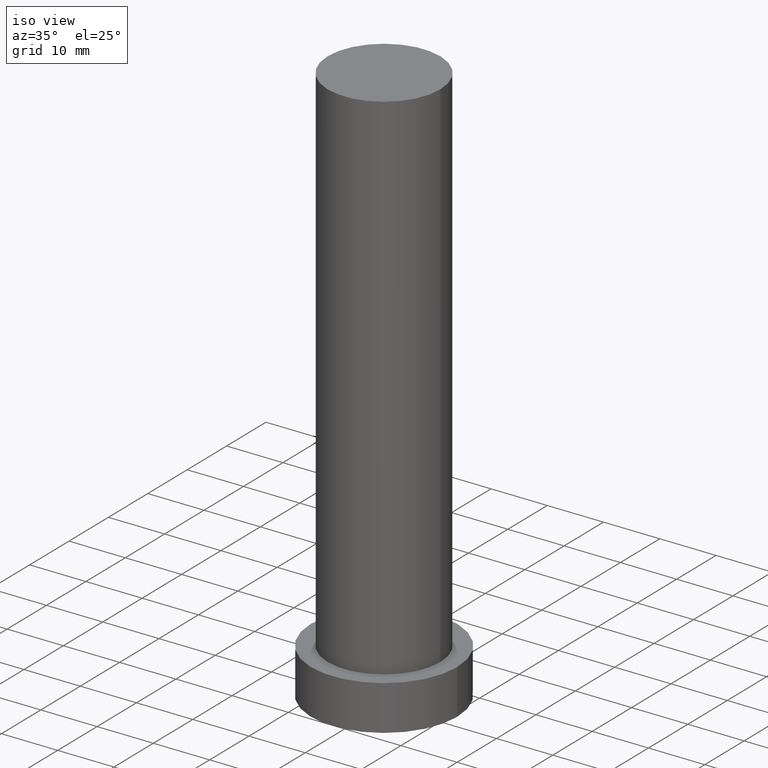
[diagram: clean part render]
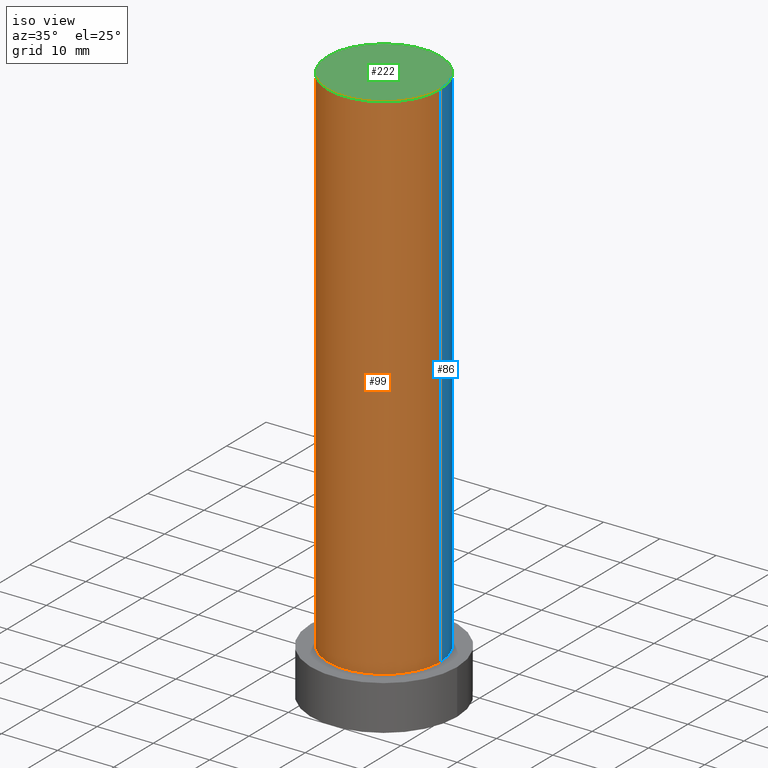
[diagram: same view with three faces highlighted in distinct colors, each labeled with its STEP entity id]
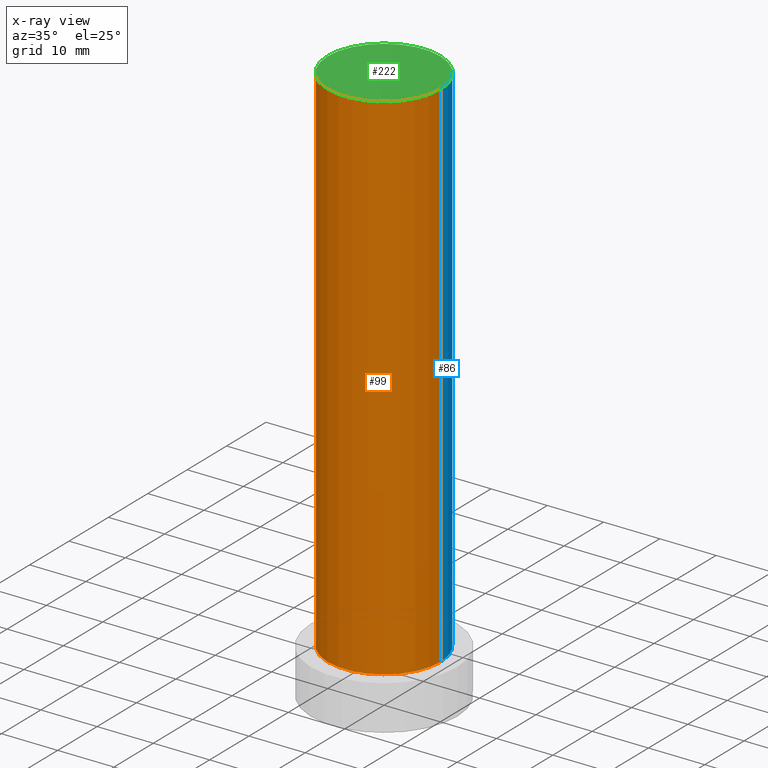
[diagram: x-ray of the same camera — body ghosted, the three highlighted faces saturated]
A machine part, iso view with three faces highlighted in distinct colors.
The next image is the same camera in x-ray (body ghosted, the three faces saturated) — at least one of them is partly hidden behind the body in this view.
Their STEP definitions:

[orange] entity #99 — the highlighted cylindrical surface (partial cylindrical patch) has radius 10 mm, axis along (-0, -0, -1).
#7 = VERTEX_POINT ( 'NONE', #120 ) ;
#21 = CIRCLE ( 'NONE', #123, 10.00000000000000000 ) ;
#29 = CARTESIAN_POINT ( 'NONE',  ( 10.00000000000000000, 1.224646799147353256E-15, 8.000000000000000000 ) ) ;
#39 = EDGE_CURVE ( 'NONE', #77, #228, #21, .T. ) ;
#48 = VERTEX_POINT ( 'NONE', #253 ) ;
#53 = CARTESIAN_POINT ( 'NONE',  ( 0.000000000000000000, 0.000000000000000000, 100.0000000000000000 ) ) ;
#75 = FACE_OUTER_BOUND ( 'NONE', #88, .T. ) ;
#77 = VERTEX_POINT ( 'NONE', #251 ) ;
#88 = EDGE_LOOP ( 'NONE', ( #173, #139, #211, #157 ) ) ;
#90 = CIRCLE ( 'NONE', #203, 10.00000000000000000 ) ;
#91 = CARTESIAN_POINT ( 'NONE',  ( 0.000000000000000000, 0.000000000000000000, 100.0000000000000000 ) ) ;
#93 = DIRECTION ( 'NONE',  ( 0.000000000000000000, 0.000000000000000000, 1.000000000000000000 ) ) ;
#95 = DIRECTION ( 'NONE',  ( 1.000000000000000000, 0.000000000000000000, 0.000000000000000000 ) ) ;
#96 = AXIS2_PLACEMENT_3D ( 'NONE', #53, #114, #112 ) ;
#99 = ADVANCED_FACE ( 'NONE', ( #75 ), #156, .T. ) ;
#112 = DIRECTION ( 'NONE',  ( -1.000000000000000000, 0.000000000000000000, 0.000000000000000000 ) ) ;
#114 = DIRECTION ( 'NONE',  ( -0.000000000000000000, -0.000000000000000000, -1.000000000000000000 ) ) ;
#116 = CARTESIAN_POINT ( 'NONE',  ( 0.000000000000000000, 0.000000000000000000, 8.000000000000000000 ) ) ;
#120 = CARTESIAN_POINT ( 'NONE',  ( 10.00000000000000000, 1.224646799147353256E-15, 100.0000000000000000 ) ) ;
#122 = EDGE_CURVE ( 'NONE', #48, #77, #224, .T. ) ;
#123 = AXIS2_PLACEMENT_3D ( 'NONE', #116, #93, #95 ) ;
#139 = ORIENTED_EDGE ( 'NONE', *, *, #245, .F. ) ;
#155 = DIRECTION ( 'NONE',  ( 0.000000000000000000, 0.000000000000000000, 1.000000000000000000 ) ) ;
#156 = CYLINDRICAL_SURFACE ( 'NONE', #96, 10.00000000000000000 ) ;
#157 = ORIENTED_EDGE ( 'NONE', *, *, #39, .T. ) ;
#160 = VECTOR ( 'NONE', #202, 1000.000000000000000 ) ;
#163 = EDGE_CURVE ( 'NONE', #7, #228, #208, .T. ) ;
#169 = DIRECTION ( 'NONE',  ( -0.000000000000000000, -0.000000000000000000, -1.000000000000000000 ) ) ;
#173 = ORIENTED_EDGE ( 'NONE', *, *, #163, .F. ) ;
#202 = DIRECTION ( 'NONE',  ( -0.000000000000000000, -0.000000000000000000, -1.000000000000000000 ) ) ;
#203 = AXIS2_PLACEMENT_3D ( 'NONE', #91, #155, #225 ) ;
#205 = VECTOR ( 'NONE', #169, 1000.000000000000000 ) ;
#208 = LINE ( 'NONE', #247, #160 ) ;
#211 = ORIENTED_EDGE ( 'NONE', *, *, #122, .T. ) ;
#223 = CARTESIAN_POINT ( 'NONE',  ( -10.00000000000000000, 0.000000000000000000, 100.0000000000000000 ) ) ;
#224 = LINE ( 'NONE', #223, #205 ) ;
#225 = DIRECTION ( 'NONE',  ( 1.000000000000000000, 0.000000000000000000, 0.000000000000000000 ) ) ;
#228 = VERTEX_POINT ( 'NONE', #29 ) ;
#245 = EDGE_CURVE ( 'NONE', #48, #7, #90, .T. ) ;
#247 = CARTESIAN_POINT ( 'NONE',  ( 10.00000000000000000, 1.224646799147353256E-15, 100.0000000000000000 ) ) ;
#251 = CARTESIAN_POINT ( 'NONE',  ( -10.00000000000000000, 0.000000000000000000, 8.000000000000000000 ) ) ;
#253 = CARTESIAN_POINT ( 'NONE',  ( -10.00000000000000000, 0.000000000000000000, 100.0000000000000000 ) ) ;

[blue] entity #86 — the highlighted cylindrical surface (partial cylindrical patch) has radius 10 mm, axis along (-0, -0, -1).
#4 = AXIS2_PLACEMENT_3D ( 'NONE', #89, #137, #244 ) ;
#6 = ORIENTED_EDGE ( 'NONE', *, *, #163, .T. ) ;
#7 = VERTEX_POINT ( 'NONE', #120 ) ;
#9 = DIRECTION ( 'NONE',  ( 1.000000000000000000, 0.000000000000000000, 0.000000000000000000 ) ) ;
#11 = ORIENTED_EDGE ( 'NONE', *, *, #252, .T. ) ;
#15 = DIRECTION ( 'NONE',  ( -0.000000000000000000, -0.000000000000000000, -1.000000000000000000 ) ) ;
#27 = CARTESIAN_POINT ( 'NONE',  ( 0.000000000000000000, 0.000000000000000000, 8.000000000000000000 ) ) ;
#29 = CARTESIAN_POINT ( 'NONE',  ( 10.00000000000000000, 1.224646799147353256E-15, 8.000000000000000000 ) ) ;
#48 = VERTEX_POINT ( 'NONE', #253 ) ;
#59 = AXIS2_PLACEMENT_3D ( 'NONE', #27, #182, #9 ) ;
#74 = CIRCLE ( 'NONE', #59, 10.00000000000000000 ) ;
#77 = VERTEX_POINT ( 'NONE', #251 ) ;
#85 = EDGE_LOOP ( 'NONE', ( #212, #6, #11, #142 ) ) ;
#86 = ADVANCED_FACE ( 'NONE', ( #177 ), #255, .T. ) ;
#89 = CARTESIAN_POINT ( 'NONE',  ( 0.000000000000000000, 0.000000000000000000, 100.0000000000000000 ) ) ;
#105 = AXIS2_PLACEMENT_3D ( 'NONE', #227, #15, #172 ) ;
#120 = CARTESIAN_POINT ( 'NONE',  ( 10.00000000000000000, 1.224646799147353256E-15, 100.0000000000000000 ) ) ;
#122 = EDGE_CURVE ( 'NONE', #48, #77, #224, .T. ) ;
#137 = DIRECTION ( 'NONE',  ( 0.000000000000000000, 0.000000000000000000, 1.000000000000000000 ) ) ;
#142 = ORIENTED_EDGE ( 'NONE', *, *, #122, .F. ) ;
#160 = VECTOR ( 'NONE', #202, 1000.000000000000000 ) ;
#163 = EDGE_CURVE ( 'NONE', #7, #228, #208, .T. ) ;
#169 = DIRECTION ( 'NONE',  ( -0.000000000000000000, -0.000000000000000000, -1.000000000000000000 ) ) ;
#172 = DIRECTION ( 'NONE',  ( -1.000000000000000000, 0.000000000000000000, 0.000000000000000000 ) ) ;
#177 = FACE_OUTER_BOUND ( 'NONE', #85, .T. ) ;
#182 = DIRECTION ( 'NONE',  ( 0.000000000000000000, 0.000000000000000000, 1.000000000000000000 ) ) ;
#195 = EDGE_CURVE ( 'NONE', #7, #48, #231, .T. ) ;
#202 = DIRECTION ( 'NONE',  ( -0.000000000000000000, -0.000000000000000000, -1.000000000000000000 ) ) ;
#205 = VECTOR ( 'NONE', #169, 1000.000000000000000 ) ;
#208 = LINE ( 'NONE', #247, #160 ) ;
#212 = ORIENTED_EDGE ( 'NONE', *, *, #195, .F. ) ;
#223 = CARTESIAN_POINT ( 'NONE',  ( -10.00000000000000000, 0.000000000000000000, 100.0000000000000000 ) ) ;
#224 = LINE ( 'NONE', #223, #205 ) ;
#227 = CARTESIAN_POINT ( 'NONE',  ( 0.000000000000000000, 0.000000000000000000, 100.0000000000000000 ) ) ;
#228 = VERTEX_POINT ( 'NONE', #29 ) ;
#231 = CIRCLE ( 'NONE', #4, 10.00000000000000000 ) ;
#244 = DIRECTION ( 'NONE',  ( 1.000000000000000000, 0.000000000000000000, 0.000000000000000000 ) ) ;
#247 = CARTESIAN_POINT ( 'NONE',  ( 10.00000000000000000, 1.224646799147353256E-15, 100.0000000000000000 ) ) ;
#251 = CARTESIAN_POINT ( 'NONE',  ( -10.00000000000000000, 0.000000000000000000, 8.000000000000000000 ) ) ;
#252 = EDGE_CURVE ( 'NONE', #228, #77, #74, .T. ) ;
#253 = CARTESIAN_POINT ( 'NONE',  ( -10.00000000000000000, 0.000000000000000000, 100.0000000000000000 ) ) ;
#255 = CYLINDRICAL_SURFACE ( 'NONE', #105, 10.00000000000000000 ) ;

[green] entity #222 — the highlighted planar face has unit normal (0, 0, 1).
#4 = AXIS2_PLACEMENT_3D ( 'NONE', #89, #137, #244 ) ;
#7 = VERTEX_POINT ( 'NONE', #120 ) ;
#24 = AXIS2_PLACEMENT_3D ( 'NONE', #186, #31, #188 ) ;
#31 = DIRECTION ( 'NONE',  ( 0.000000000000000000, 0.000000000000000000, 1.000000000000000000 ) ) ;
#48 = VERTEX_POINT ( 'NONE', #253 ) ;
#54 = ORIENTED_EDGE ( 'NONE', *, *, #245, .T. ) ;
#64 = ORIENTED_EDGE ( 'NONE', *, *, #195, .T. ) ;
#73 = FACE_OUTER_BOUND ( 'NONE', #149, .T. ) ;
#89 = CARTESIAN_POINT ( 'NONE',  ( 0.000000000000000000, 0.000000000000000000, 100.0000000000000000 ) ) ;
#90 = CIRCLE ( 'NONE', #203, 10.00000000000000000 ) ;
#91 = CARTESIAN_POINT ( 'NONE',  ( 0.000000000000000000, 0.000000000000000000, 100.0000000000000000 ) ) ;
#120 = CARTESIAN_POINT ( 'NONE',  ( 10.00000000000000000, 1.224646799147353256E-15, 100.0000000000000000 ) ) ;
#137 = DIRECTION ( 'NONE',  ( 0.000000000000000000, 0.000000000000000000, 1.000000000000000000 ) ) ;
#149 = EDGE_LOOP ( 'NONE', ( #54, #64 ) ) ;
#154 = PLANE ( 'NONE',  #24 ) ;
#155 = DIRECTION ( 'NONE',  ( 0.000000000000000000, 0.000000000000000000, 1.000000000000000000 ) ) ;
#186 = CARTESIAN_POINT ( 'NONE',  ( 0.000000000000000000, 0.000000000000000000, 100.0000000000000000 ) ) ;
#188 = DIRECTION ( 'NONE',  ( 1.000000000000000000, 0.000000000000000000, -0.000000000000000000 ) ) ;
#195 = EDGE_CURVE ( 'NONE', #7, #48, #231, .T. ) ;
#203 = AXIS2_PLACEMENT_3D ( 'NONE', #91, #155, #225 ) ;
#222 = ADVANCED_FACE ( 'NONE', ( #73 ), #154, .T. ) ;
#225 = DIRECTION ( 'NONE',  ( 1.000000000000000000, 0.000000000000000000, 0.000000000000000000 ) ) ;
#231 = CIRCLE ( 'NONE', #4, 10.00000000000000000 ) ;
#244 = DIRECTION ( 'NONE',  ( 1.000000000000000000, 0.000000000000000000, 0.000000000000000000 ) ) ;
#245 = EDGE_CURVE ( 'NONE', #48, #7, #90, .T. ) ;
#253 = CARTESIAN_POINT ( 'NONE',  ( -10.00000000000000000, 0.000000000000000000, 100.0000000000000000 ) ) ;